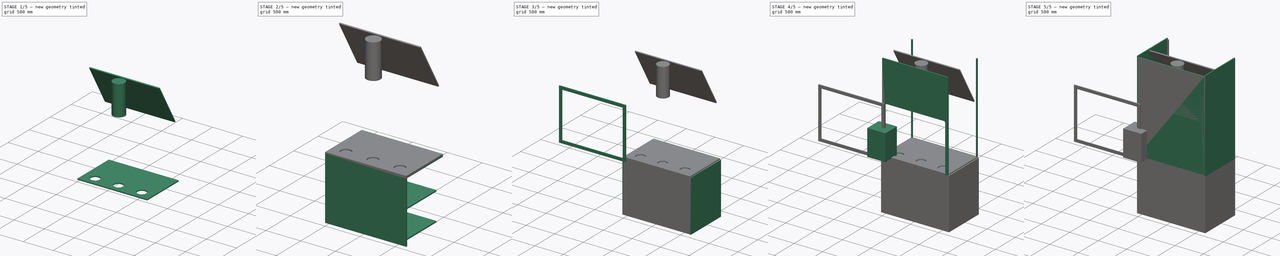
[diagram: build sequence overview — one tinted view per stage of 5, left to right]
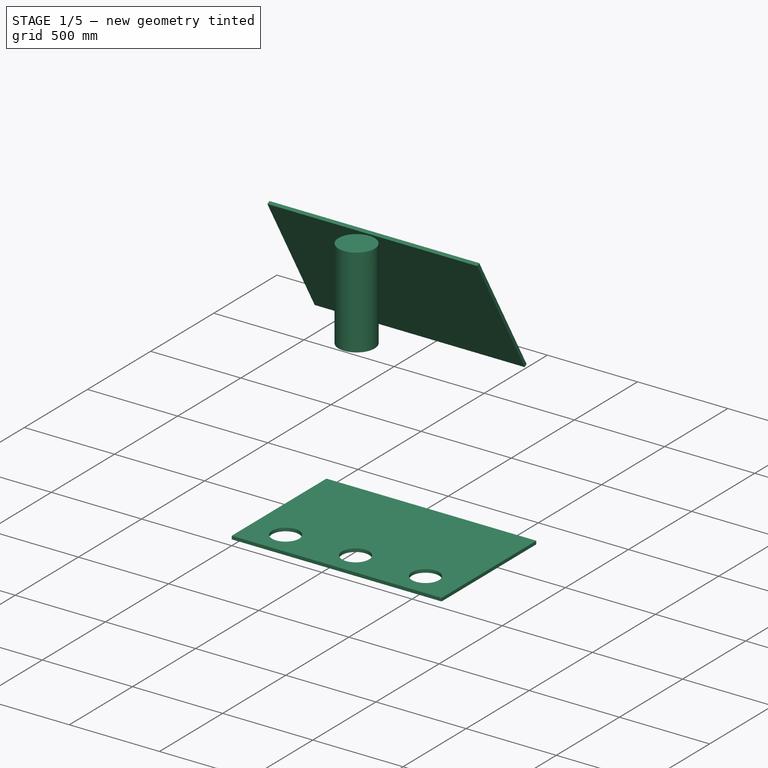
[diagram: stage 1 of 5 — iso view after this stage's code; geometry added in this stage tinted green]
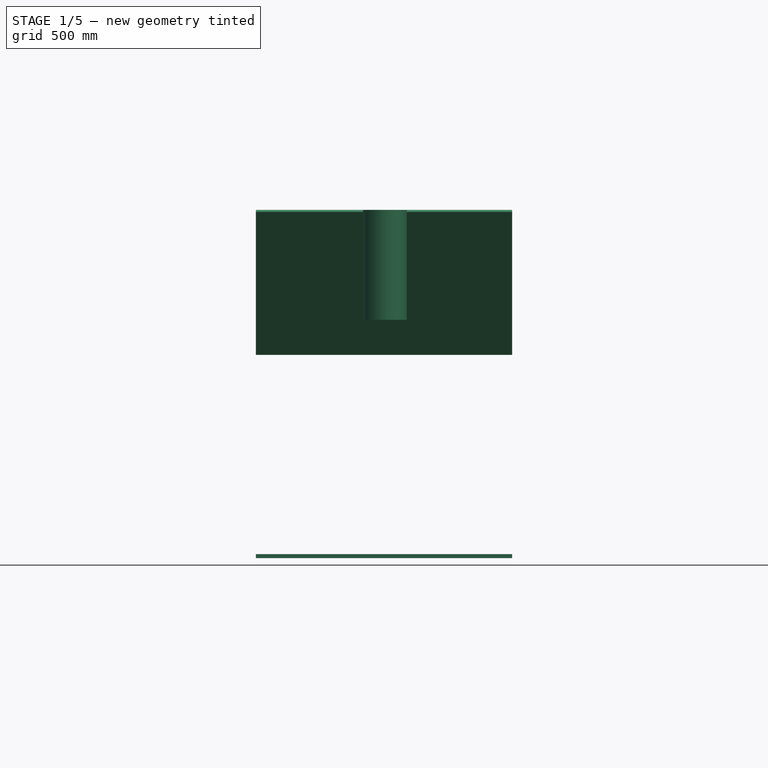
[diagram: stage 1 of 5 — front view after this stage's code; geometry added in this stage tinted green]
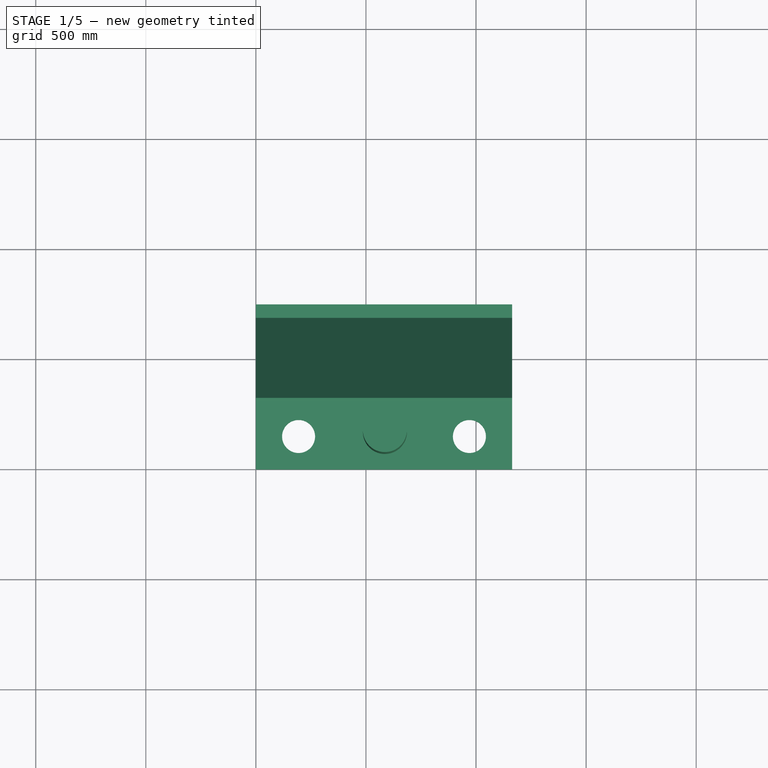
[diagram: stage 1 of 5 — top view after this stage's code; geometry added in this stage tinted green]
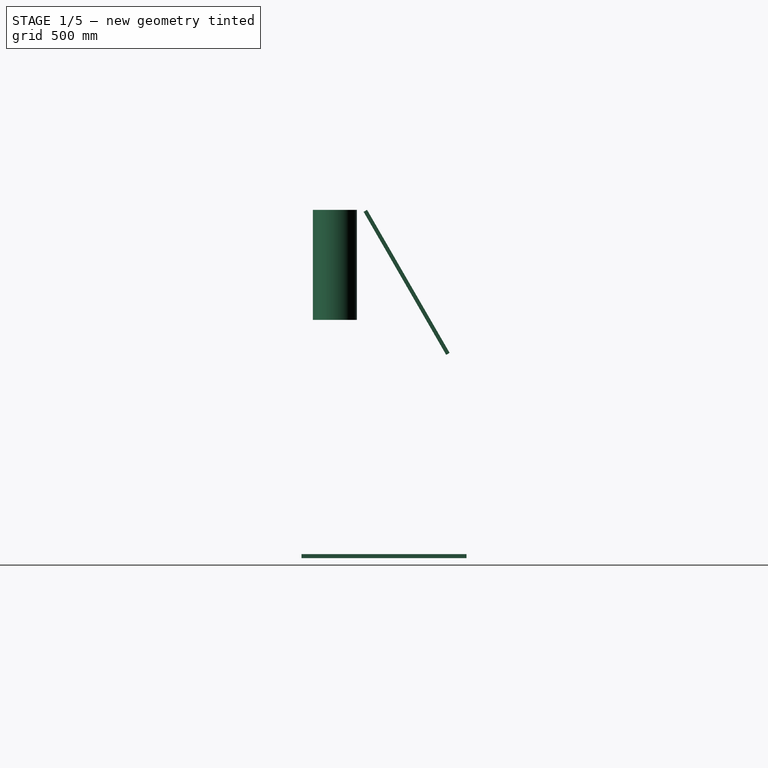
[diagram: stage 1 of 5 — right view after this stage's code; geometry added in this stage tinted green]
FCSTD DOCUMENT  (FreeCAD 0.18R4 (GitTag))
Label: fumehood1200
License: All rights reserved
LicenseURL: http://en.wikipedia.org/wiki/All_rights_reserved
objects: Part::Box×13, Sketcher::SketchObject×7, PartDesign::Body×5, PartDesign::Pad×4, App::Part×3, PartDesign::Pocket×2, TechDraw::DrawSVGTemplate×2, TechDraw::DrawPage×2, Spreadsheet::Sheet×1, Part::Cylinder×1
note: 38 computed .brp shape members not serialized (recipe doc carries the construction recipe); baked Part::Feature solids carry a one-line shape summary decoded from their .brp

FEATURE [App::Part] Part002  label="Shelf"
  Group = -> [Box007,Box008,Box009,Box010,Box011,Box012]
  Origin = -> Origin013
  Placement = pos=(0,0,-300) rot=(0,0,1;0rad)
FEATURE [Part::Cylinder] Cylinder
  Angle = 360
  AttacherType = Attacher::AttachEngine3D
  Height = 500
  Placement = pos=(586,152,1082) rot=(0,0,1;0rad)
  Radius = 100
FEATURE [Part::Box] Box013  label="Airway"
  AttacherType = Attacher::AttachEngine3D
  Height = 750
  Length = 1164
  Placement = pos=(0,298,1582) rot=(1,0,0;3.66519rad)
  Width = 18
  expr: Width = dim.dim_thickness
  expr: Length = dim.dim_width - 2 * dim.dim_thickness
FEATURE [Sketcher::SketchObject] Sketch013
  MapMode = 5
  Support = -> [XY_Plane014]
  expr: Constraints[10] = dim.dim_width - 2 * dim.dim_thickness
  expr: Constraints[9] = dim.dim_depth
  sketch-geometry (4):
    g0: LineSegment StartX=0 StartY=0 StartZ=0 EndX=1164 EndY=0 EndZ=0
    g1: LineSegment StartX=1164 StartY=0 StartZ=0 EndX=1164 EndY=750 EndZ=0
    g2: LineSegment StartX=1164 StartY=750 StartZ=0 EndX=0 EndY=750 EndZ=0
    g3: LineSegment StartX=0 StartY=750 StartZ=0 EndX=0 EndY=0 EndZ=0
  constraints (11):
    c: Coincident(g0,g1)
    c: Coincident(g1,g2)
    c: Coincident(g2,g3)
    c: Coincident(g3,g0)
    c: Horizontal(g0)
    c: Horizontal(g2)
    c: Vertical(g1)
    c: Vertical(g3)
    c: Coincident(g0,g-1)
    c: DistanceY(g1,g1) = 750
    c: DistanceX(g2,g2) = 1164
FEATURE [PartDesign::Pad] Pad011
  Length = 18
  Length2 = 100
  Profile = -> Sketch013
  Type = 0
  expr: Length = dim.dim_thickness
FEATURE [Sketcher::SketchObject] Sketch014
  ExternalGeometry = -> [Pad011]
  MapMode = 5
  Placement = pos=(0,0,18) rot=(0,0,1;0rad)
  Support = -> [Pad011]
  sketch-geometry (11):
    g0: LineSegment [constr] StartX=0 StartY=0 StartZ=0 EndX=194 EndY=150 EndZ=0
    g1: LineSegment [constr] StartX=194 StartY=150 StartZ=0 EndX=388 EndY=0 EndZ=0
    g2: LineSegment [constr] StartX=388 StartY=0 StartZ=0 EndX=582 EndY=150 EndZ=0
    g3: LineSegment [constr] StartX=582 StartY=150 StartZ=0 EndX=776 EndY=0 EndZ=0
    g4: LineSegment [constr] StartX=776 StartY=0 StartZ=0 EndX=970 EndY=150 EndZ=0
    g5: LineSegment [constr] StartX=970 StartY=150 StartZ=0 EndX=1164 EndY=0 EndZ=0
    g6: LineSegment [constr] StartX=194 StartY=150 StartZ=0 EndX=582 EndY=150 EndZ=0
    g7: LineSegment [constr] StartX=582 StartY=150 StartZ=0 EndX=970 EndY=150 EndZ=0
    g8: Circle CenterX=582 CenterY=150 CenterZ=0 NormalX=0 NormalY=0 NormalZ=1 AngleXU=0 Radius=75
    g9: Circle CenterX=970 CenterY=150 CenterZ=0 NormalX=0 NormalY=0 NormalZ=1 AngleXU=0 Radius=75
    g10: Circle CenterX=194 CenterY=150 CenterZ=0 NormalX=0 NormalY=0 NormalZ=1 AngleXU=0 Radius=75
  constraints (27):
    c: Coincident(g-1,g0)
    c: Coincident(g0,g1)
    c: PointOnObject(g1,g-3)
    c: Coincident(g1,g2)
    c: Coincident(g2,g3)
    c: PointOnObject(g3,g-3)
    c: Coincident(g3,g4)
    c: Coincident(g4,g5)
    c: Coincident(g5,g-3)
    c: Coincident(g0,g6)
    c: Coincident(g6,g2)
    c: Horizontal(g6)
    c: Coincident(g6,g7)
    c: Coincident(g7,g4)
    c: Horizontal(g7)
    c: Equal(g1,g0)
    c: Equal(g0,g2)
    c: Equal(g2,g3)
    c: Equal(g3,g4)
    c: Equal(g4,g5)
    c: Coincident(g8,g2)
    c: Coincident(g9,g4)
    c: Coincident(g10,g0)
    c: Diameter(g10) = 150
    c: Equal(g10,g8)
    c: Equal(g10,g9)
    c: DistanceY(g-1,g10) = 150
FEATURE [PartDesign::Pocket] Pocket001
  BaseFeature = -> Pad011
  Length = 5
  Length2 = 100
  Profile = -> Sketch014
  Type = 1
FEATURE [PartDesign::Body] Body010  label="Top001"
  Group = -> [Sketch013,Pad011,Sketch014,Pocket001]
  Origin = -> Origin014
  Placement = pos=(0,0,1582) rot=(0,0,1;0rad)
  Tip = -> Pocket001
  expr: Placement.Base.z = dim.dim_height - dim.dim_thickness
FEATURE [TechDraw::DrawSVGTemplate] Template
  EditableTexts = Designed_by_Name=Designed by Name; Drawing_number=Drawing number; FC-Date=Date; FC-SC=Scale; FC-SH=Sheet; FC-Title=Title; Subtitle=Subtitle; Weight=Weight
  Height = 210
  Orientation = 1
  Width = 297
FEATURE [TechDraw::DrawPage] Page  label="Box"
  KeepUpdated = true
  ProjectionType = 0
  Template = -> Template
FEATURE [TechDraw::DrawSVGTemplate] Template001
  EditableTexts = Designed_by_Name=Designed by Name; Drawing_number=Drawing number; FC-Date=Date; FC-SC=Scale; FC-SH=Sheet; FC-Title=Title; Subtitle=Subtitle; Weight=Weight
  Height = 210
  Orientation = 1
  Width = 297
FEATURE [TechDraw::DrawPage] Page001  label="Shelf001"
  KeepUpdated = true
  ProjectionType = 0
  Template = -> Template001
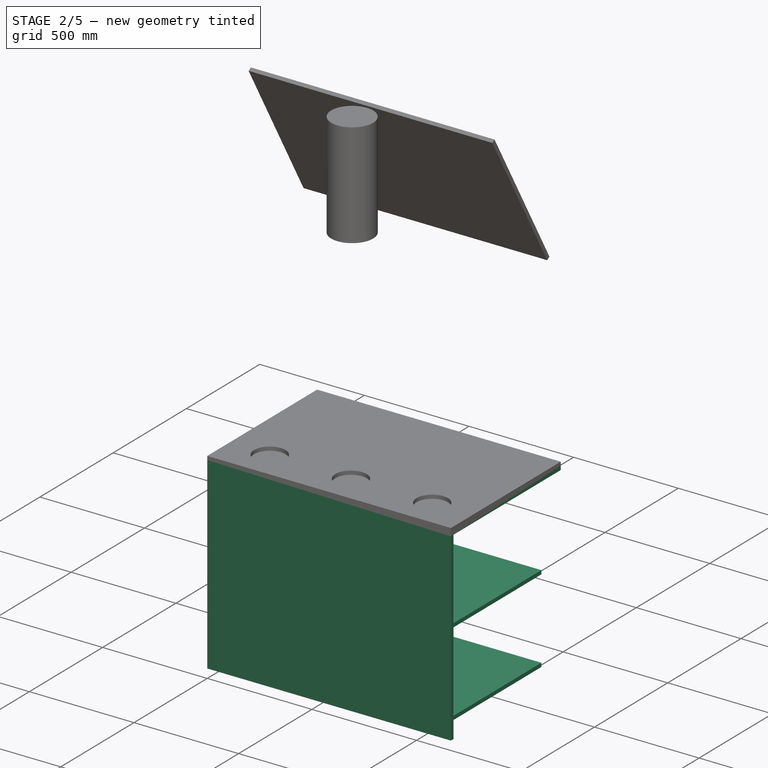
[diagram: stage 2 of 5 — iso view after this stage's code; geometry added in this stage tinted green]
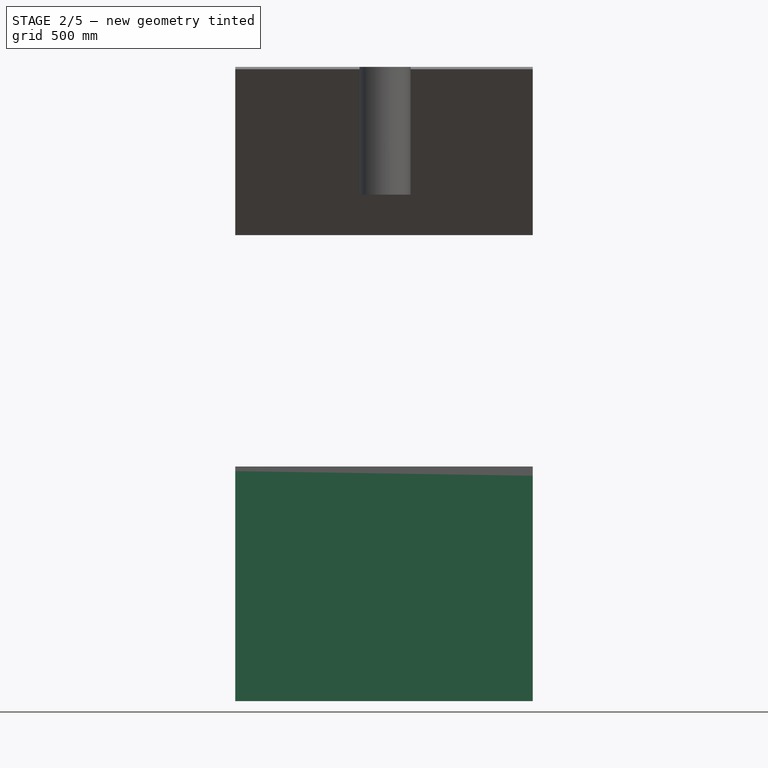
[diagram: stage 2 of 5 — front view after this stage's code; geometry added in this stage tinted green]
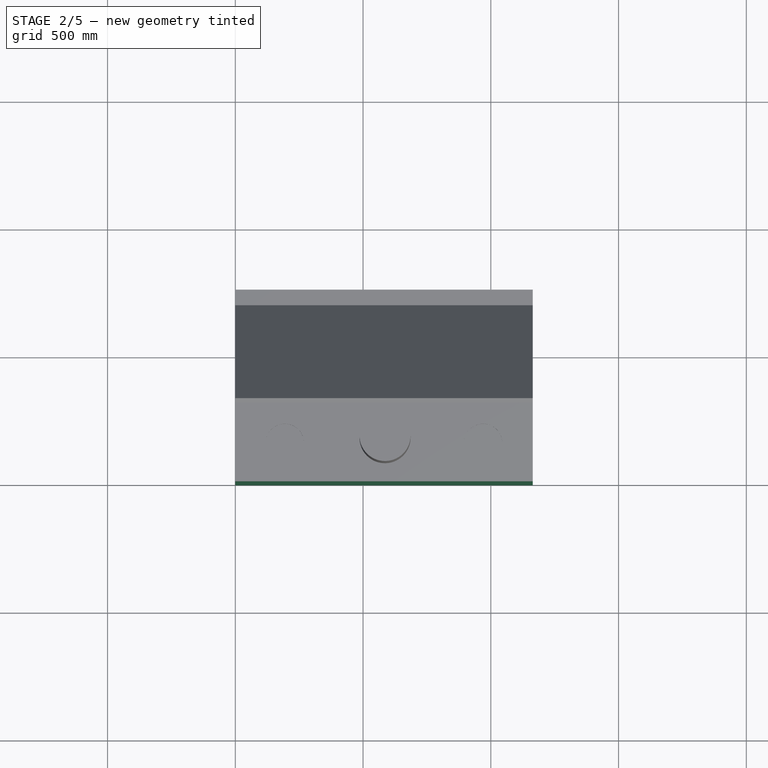
[diagram: stage 2 of 5 — top view after this stage's code; geometry added in this stage tinted green]
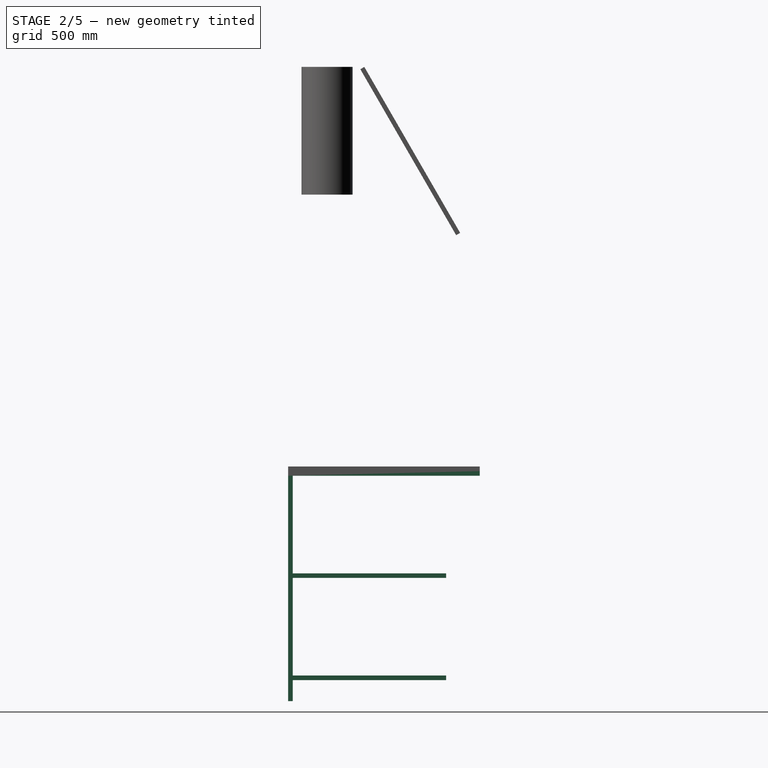
[diagram: stage 2 of 5 — right view after this stage's code; geometry added in this stage tinted green]
FEATURE [Part::Box] Box009  label="ShelfTop"
  AttacherType = Attacher::AttachEngine3D
  Height = 750
  Length = 1164
  Placement = pos=(0,0,3.89e-13) rot=(-1,0,0;1.5708rad)
  Width = 18
  expr: Height = dim.dim_depth
  expr: Width = dim.dim_thickness
  expr: Length = dim.dim_width - 2 * dim.dim_thickness
FEATURE [Part::Box] Box010  label="ShelfBack"
  AttacherType = Attacher::AttachEngine3D
  Height = 882
  Length = 1164
  Placement = pos=(0,0,-900) rot=(0,0,1;0rad)
  Width = 18
  expr: Width = dim.dim_thickness
  expr: Height = dim.dim_elevation - dim.dim_thickness
  expr: Length = dim.dim_width - 2 * dim.dim_thickness
FEATURE [Part::Box] Box011  label="ShelfMid1"
  AttacherType = Attacher::AttachEngine3D
  Height = 18
  Length = 1164
  Placement = pos=(0,18,-418) rot=(0,0,1;0rad)
  Width = 600
  expr: Length = dim.dim_width - 2 * dim.dim_thickness
  expr: Width = dim.dim_depth - 150
  expr: Height = dim.dim_thickness
FEATURE [Part::Box] Box012  label="ShelfMid2"
  AttacherType = Attacher::AttachEngine3D
  Height = 18
  Length = 1164
  Placement = pos=(0,18,-818) rot=(0,0,1;0rad)
  Width = 600
  expr: Height = dim.dim_thickness
  expr: Width = dim.dim_depth - 150
  expr: Length = dim.dim_width - 2 * dim.dim_thickness
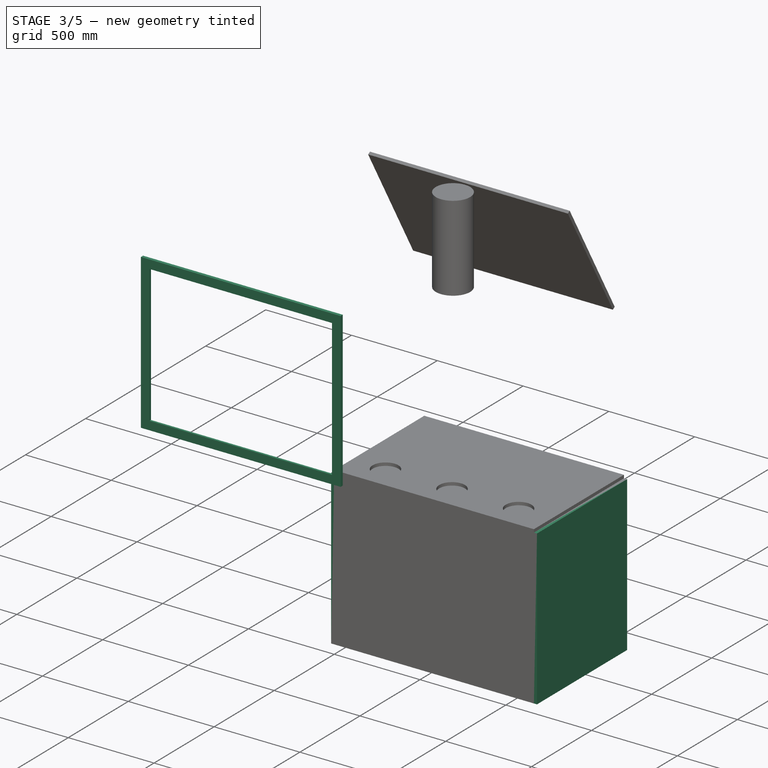
[diagram: stage 3 of 5 — iso view after this stage's code; geometry added in this stage tinted green]
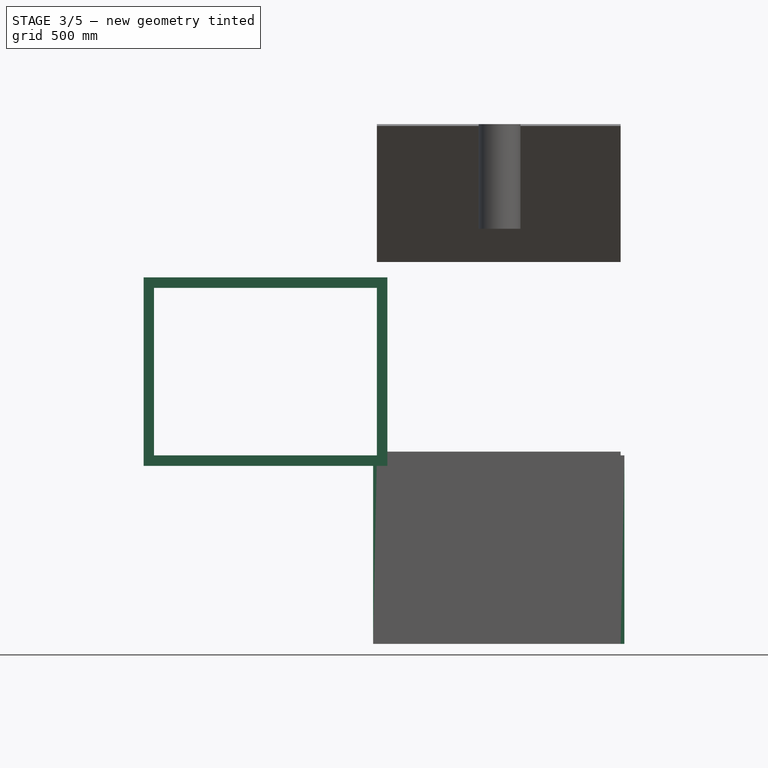
[diagram: stage 3 of 5 — front view after this stage's code; geometry added in this stage tinted green]
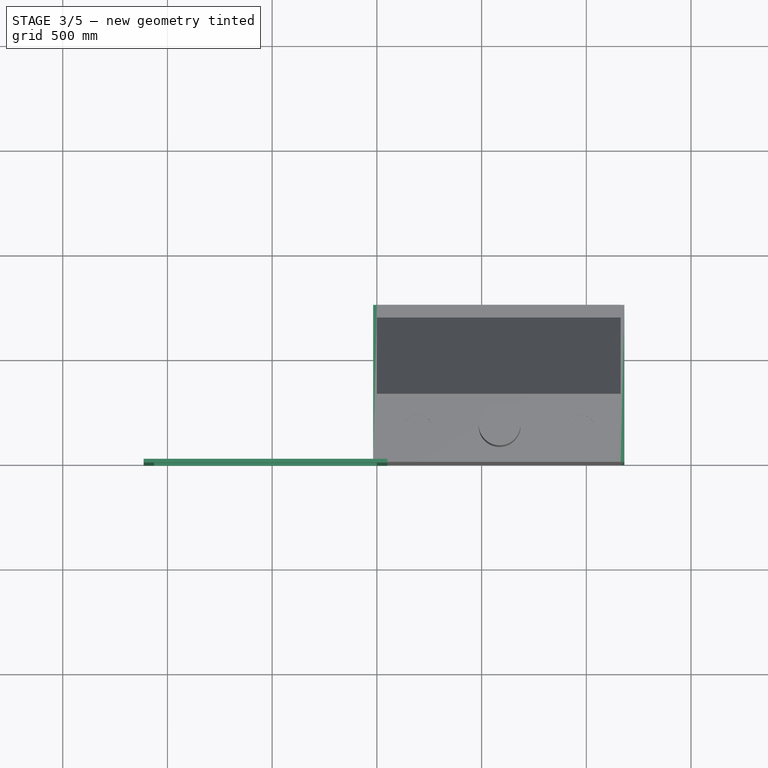
[diagram: stage 3 of 5 — top view after this stage's code; geometry added in this stage tinted green]
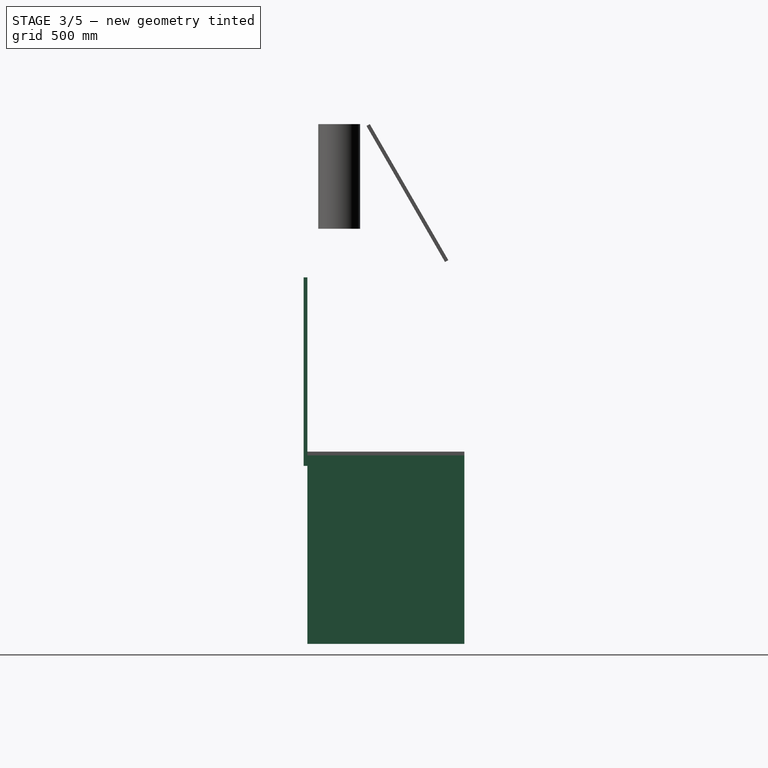
[diagram: stage 3 of 5 — right view after this stage's code; geometry added in this stage tinted green]
FEATURE [PartDesign::Body] Body  label="Front"
  Group = -> [Sketch,Pad]
  Origin = -> Origin
  Placement = pos=(0,662,18) rot=(0,0,1;0rad)
  Tip = -> Pad
  expr: Placement.Base.y = dim.dim_depth - 1 * dim.dim_thickness - 20 - 50
FEATURE [Sketcher::SketchObject] Sketch001
  MapMode = 5
  Placement = pos=(0,0,0) rot=(1,0,0;1.5708rad)
  Support = -> [XZ_Plane001]
  expr: Constraints[34] = dim.dim_windowedge
  expr: Constraints[18] = dim.dim_windowheight
  expr: Constraints[17] = dim.dim_windowwidth
  sketch-geometry (12):
    g0: LineSegment StartX=0 StartY=0 StartZ=0 EndX=-1064 EndY=0 EndZ=0
    g1: LineSegment StartX=-1064 StartY=0 StartZ=0 EndX=-1064 EndY=800 EndZ=0
    g2: LineSegment StartX=-1064 StartY=800 StartZ=0 EndX=0 EndY=800 EndZ=0
    g3: LineSegment StartX=0 StartY=800 StartZ=0 EndX=0 EndY=0 EndZ=0
    g4: LineSegment StartX=50 StartY=850 StartZ=0 EndX=-1114 EndY=850 EndZ=0
    g5: LineSegment StartX=-1114 StartY=850 StartZ=0 EndX=-1114 EndY=-50 EndZ=0
    g6: LineSegment StartX=-1114 StartY=-50 StartZ=0 EndX=50 EndY=-50 EndZ=0
    g7: LineSegment StartX=50 StartY=-50 StartZ=0 EndX=50 EndY=850 EndZ=0
    g8: LineSegment [constr] StartX=-1064 StartY=800 StartZ=0 EndX=-1114 EndY=800 EndZ=0
    g9: LineSegment [constr] StartX=-1064 StartY=800 StartZ=0 EndX=-1064 EndY=850 EndZ=0
    g10: LineSegment [constr] StartX=0 StartY=0 StartZ=0 EndX=50 EndY=0 EndZ=0
    g11: LineSegment [constr] StartX=0 StartY=0 StartZ=0 EndX=0 EndY=-50 EndZ=0
  constraints (35):
    c: Coincident(g0,g1)
    c: Coincident(g1,g2)
    c: Coincident(g2,g3)
    c: Coincident(g3,g0)
    c: Horizontal(g0)
    c: Horizontal(g2)
    c: Vertical(g1)
    c: Vertical(g3)
    c: Coincident(g0,g-1)
    c: Coincident(g4,g5)
    c: Coincident(g5,g6)
    c: Coincident(g6,g7)
    c: Coincident(g7,g4)
    c: Horizontal(g4)
    c: Horizontal(g6)
    c: Vertical(g5)
    c: Vertical(g7)
    c: DistanceX(g4,g4) = 1164
    c: DistanceY(g5,g5) = 900
    c: Coincident(g8,g1)
    c: PointOnObject(g8,g5)
    c: Horizontal(g8)
    c: Coincident(g9,g1)
    c: PointOnObject(g9,g4)
    c: Vertical(g9)
    c: Coincident(g10,g0)
    c: PointOnObject(g10,g7)
    c: Coincident(g11,g0)
    c: PointOnObject(g11,g6)
    c: Horizontal(g10)
    c: Vertical(g11)
    c: Equal(g10,g11)
    c: Equal(g11,g8)
    c: Equal(g8,g9)
    c: DistanceX(g8,g8) = 50
FEATURE [PartDesign::Pad] Pad001
  Length = 18
  Length2 = 100
  Placement = pos=(0,0,0) rot=(1,0,0;1.5708rad)
  Profile = -> Sketch001
  Type = 0
  expr: Length = dim.dim_thickness
FEATURE [Sketcher::SketchObject] Sketch012
  ExternalGeometry = -> [Pad001]
  MapMode = 5
  Placement = pos=(0,8e-16,0) rot=(-1,0,0;1.5708rad)
  Support = -> [Pad001]
  sketch-geometry (8):
    g0: LineSegment StartX=-1079 StartY=15 StartZ=0 EndX=15 EndY=15 EndZ=0
    g1: LineSegment StartX=15 StartY=15 StartZ=0 EndX=15 EndY=-815 EndZ=0
    g2: LineSegment StartX=15 StartY=-815 StartZ=0 EndX=-1079 EndY=-815 EndZ=0
    g3: LineSegment StartX=-1079 StartY=-815 StartZ=0 EndX=-1079 EndY=15 EndZ=0
    g4: LineSegment [constr] StartX=-1064 StartY=0 StartZ=0 EndX=-1079 EndY=0 EndZ=0
    g5: LineSegment [constr] StartX=-1064 StartY=0 StartZ=0 EndX=-1064 EndY=15 EndZ=0
    g6: LineSegment [constr] StartX=0 StartY=-800 StartZ=0 EndX=15 EndY=-800 EndZ=0
    g7: LineSegment [constr] StartX=0 StartY=-800 StartZ=0 EndX=0 EndY=-815 EndZ=0
  constraints (24):
    c: Coincident(g0,g1)
    c: Coincident(g1,g2)
    c: Coincident(g2,g3)
    c: Coincident(g3,g0)
    c: Horizontal(g0)
    c: Horizontal(g2)
    c: Vertical(g1)
    c: Vertical(g3)
    c: Coincident(g4,g-3)
    c: PointOnObject(g4,g3)
    c: Horizontal(g4)
    c: Coincident(g5,g4)
    c: PointOnObject(g5,g0)
    c: Vertical(g5)
    c: Coincident(g6,g-4)
    c: PointOnObject(g6,g1)
    c: Horizontal(g6)
    c: Coincident(g7,g6)
    c: PointOnObject(g7,g2)
    c: Vertical(g7)
    c: Equal(g6,g7)
    c: Equal(g7,g4)
    c: Equal(g4,g5)
    c: DistanceX(g4,g4) = 15
FEATURE [PartDesign::Pocket] Pocket
  BaseFeature = -> Pad001
  Length = 6
  Length2 = 100
  Placement = pos=(0,0,0) rot=(1,0,0;1.5708rad)
  Profile = -> Sketch012
  Type = 0
FEATURE [PartDesign::Body] Body001  label="Window"
  Group = -> [Sketch001,Pad001,Sketch012,Pocket]
  Origin = -> Origin001
  Placement = pos=(1114,700,68) rot=(0,0,1;0rad)
  Tip = -> Pocket
  expr: Placement.Base.x = dim.dim_width - 2 * dim.dim_thickness - 50
FEATURE [App::Part] Part001  label="Window001"
  Group = -> [Body001]
  Origin = -> Origin012
  Placement = pos=(0,0,350) rot=(0,0,1;0rad)
FEATURE [Part::Box] Box007  label="ShelfSide1"
  AttacherType = Attacher::AttachEngine3D
  Height = 900
  Length = 18
  Placement = pos=(-18,0,-900) rot=(0,0,1;0rad)
  Width = 750
  expr: Length = dim.dim_thickness
  expr: Width = dim.dim_depth
  expr: Height = dim.dim_elevation
FEATURE [Part::Box] Box008  label="ShelfSide2"
  AttacherType = Attacher::AttachEngine3D
  Height = 900
  Length = 18
  Placement = pos=(1164,0,-900) rot=(0,0,1;0rad)
  Width = 750
  expr: Height = dim.dim_elevation
  expr: Width = dim.dim_depth
  expr: Length = dim.dim_thickness
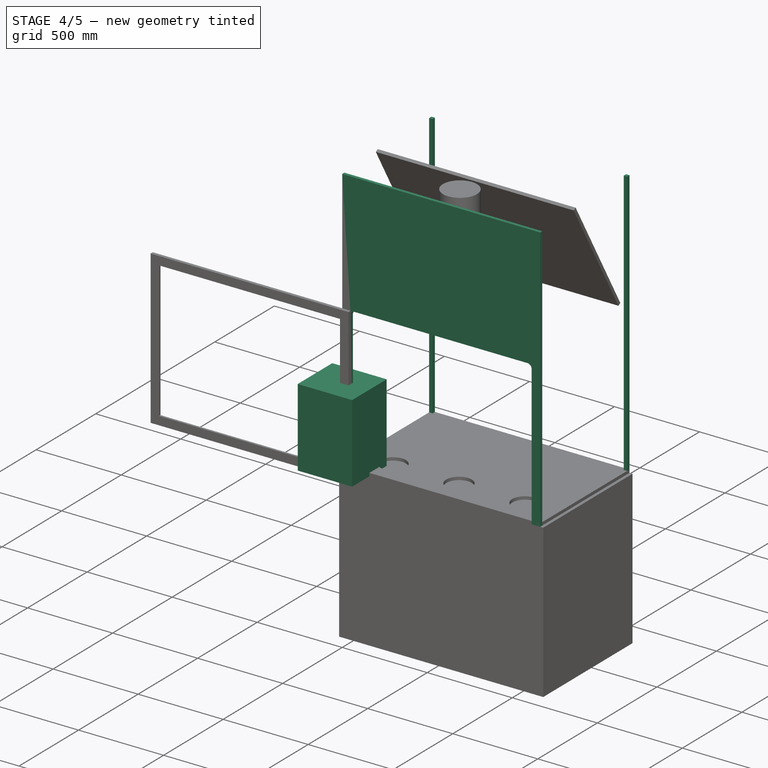
[diagram: stage 4 of 5 — iso view after this stage's code; geometry added in this stage tinted green]
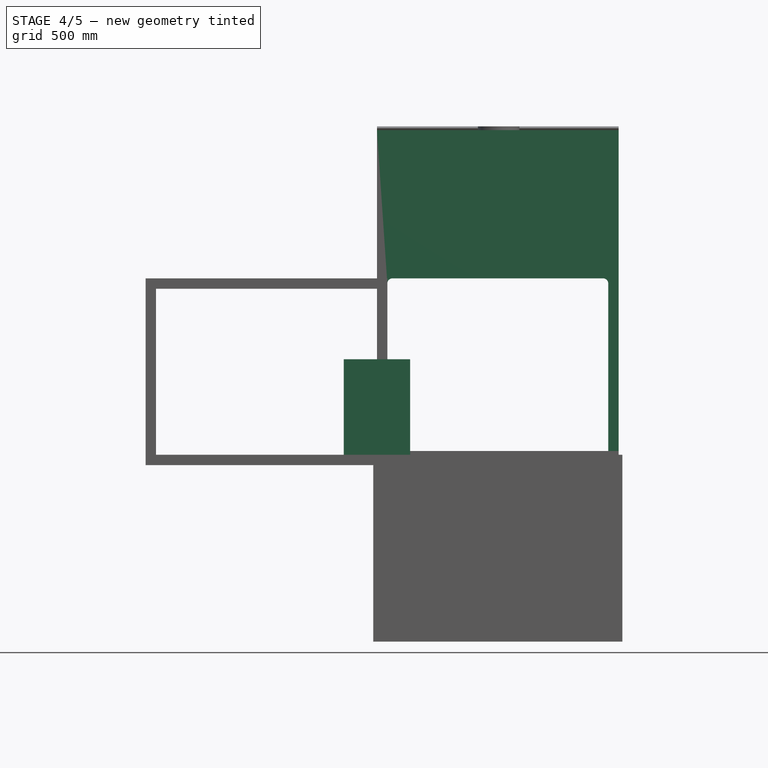
[diagram: stage 4 of 5 — front view after this stage's code; geometry added in this stage tinted green]
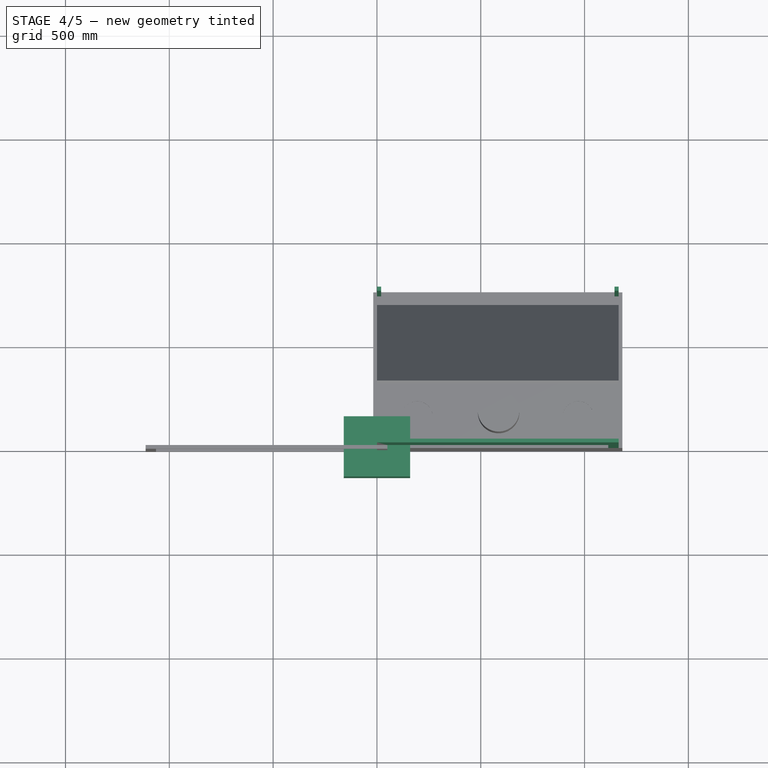
[diagram: stage 4 of 5 — top view after this stage's code; geometry added in this stage tinted green]
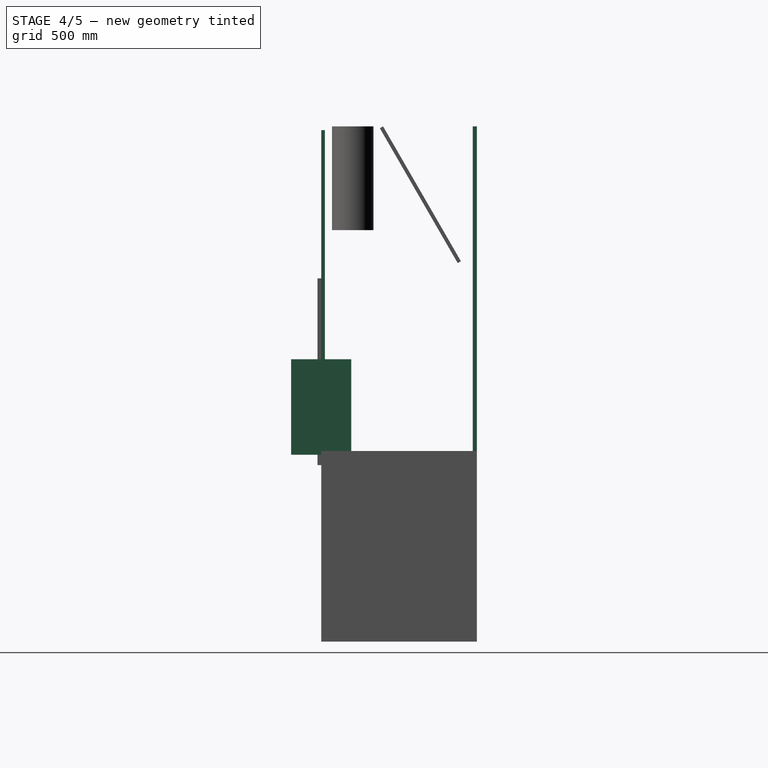
[diagram: stage 4 of 5 — right view after this stage's code; geometry added in this stage tinted green]
FEATURE [Sketcher::SketchObject] Sketch
  MapMode = 5
  Placement = pos=(0,0,0) rot=(1,0,0;1.5708rad)
  Support = -> [XZ_Plane]
  expr: Constraints[26] = dim.dim_frontedge
  expr: Constraints[16] = dim.dim_frontopening
  expr: Constraints[14] = dim.dim_frontradius
  expr: Constraints[6] = dim.dim_height - 2 * dim.dim_thickness
  expr: Constraints[5] = dim.dim_width - 2 * dim.dim_thickness
  sketch-geometry (10):
    g0: LineSegment StartX=1164 StartY=0 StartZ=0 EndX=1164 EndY=1564 EndZ=0
    g1: LineSegment StartX=1164 StartY=1564 StartZ=0 EndX=0 EndY=1564 EndZ=0
    g2: LineSegment StartX=0 StartY=1564 StartZ=0 EndX=0 EndY=0 EndZ=0
    g3: LineSegment StartX=75 StartY=850 StartZ=0 EndX=1089 EndY=850 EndZ=0
    g4: LineSegment StartX=1114 StartY=825 StartZ=0 EndX=1114 EndY=0 EndZ=0
    g5: LineSegment StartX=50 StartY=0 StartZ=0 EndX=50 EndY=825 EndZ=0
    g6: ArcOfCircle CenterX=75 CenterY=825 CenterZ=0 NormalX=0 NormalY=0 NormalZ=1 AngleXU=0 Radius=25 StartAngle=1.5708 EndAngle=3.14159
    g7: ArcOfCircle CenterX=1089 CenterY=825 CenterZ=0 NormalX=0 NormalY=0 NormalZ=1 AngleXU=0 Radius=25 StartAngle=-1.8e-15 EndAngle=1.5708
    g8: LineSegment StartX=1114 StartY=0 StartZ=0 EndX=1164 EndY=0 EndZ=0
    g9: LineSegment StartX=0 StartY=0 StartZ=0 EndX=50 EndY=0 EndZ=0
  constraints (27):
    c: Coincident(g0,g1)
    c: Coincident(g1,g2)
    c: Horizontal(g1)
    c: Vertical(g0)
    c: Vertical(g2)
    c: DistanceX(g1,g1) = 1164
    c: DistanceY(g0,g0) = 1564
    c: Horizontal(g3)
    c: Vertical(g4)
    c: Vertical(g5)
    c: Tangent(g5,g6) = 1.5708
    c: Tangent(g3,g6) = 1.5708
    c: Tangent(g3,g7) = 1.5708
    c: Tangent(g4,g7) = 1.5708
    c: Radius(g6) = 25
    c: Equal(g6,g7)
    c: DistanceY(g2,g3) = 850
    c: PointOnObject(g5,g-1)
    c: PointOnObject(g4,g-1)
    c: PointOnObject(g0,g-1)
    c: Coincident(g8,g4)
    c: Coincident(g8,g0)
    c: Coincident(g2,g-1)
    c: Coincident(g9,g2)
    c: Coincident(g9,g5)
    c: Equal(g9,g8)
    c: DistanceX(g9,g9) = 50
FEATURE [PartDesign::Pad] Pad
  Length = 18
  Length2 = 100
  Placement = pos=(0,0,0) rot=(1,0,0;1.5708rad)
  Profile = -> Sketch
  Reversed = true
  Type = 0
  expr: Length = dim.dim_thickness
FEATURE [Sketcher::SketchObject] Sketch010
  MapMode = 5
  Support = -> [XY_Plane010]
  sketch-geometry (7):
    g0: LineSegment StartX=-160 StartY=145 StartZ=0 EndX=160 EndY=145 EndZ=0
    g1: LineSegment StartX=160 StartY=145 StartZ=0 EndX=160 EndY=-145 EndZ=0
    g2: LineSegment StartX=160 StartY=-145 StartZ=0 EndX=-160 EndY=-145 EndZ=0
    g3: LineSegment StartX=-160 StartY=-145 StartZ=0 EndX=-160 EndY=145 EndZ=0
    g4: LineSegment [constr] StartX=-160 StartY=145 StartZ=0 EndX=0 EndY=0 EndZ=0
    g5: LineSegment [constr] StartX=0 StartY=0 StartZ=0 EndX=160 EndY=145 EndZ=0
    g6: LineSegment [constr] StartX=160 StartY=-145 StartZ=0 EndX=0 EndY=0 EndZ=0
  constraints (18):
    c: Coincident(g0,g1)
    c: Coincident(g1,g2)
    c: Coincident(g2,g3)
    c: Coincident(g3,g0)
    c: Horizontal(g0)
    c: Horizontal(g2)
    c: Vertical(g1)
    c: Vertical(g3)
    c: DistanceY(g3,g3) = 290
    c: DistanceX(g0,g0) = 320
    c: Coincident(g0,g4)
    c: Coincident(g4,g-1)
    c: Coincident(g4,g5)
    c: Coincident(g5,g0)
    c: Coincident(g1,g6)
    c: Coincident(g6,g-1)
    c: Equal(g6,g5)
    c: Equal(g5,g4)
FEATURE [PartDesign::Pad] Pad010
  Length = 460
  Length2 = 100
  Profile = -> Sketch010
  Type = 0
FEATURE [PartDesign::Body] Body008  label="Printer"
  Group = -> [Sketch010,Pad010]
  Origin = -> Origin010
  Placement = pos=(0,-450,20) rot=(0,0,1;0rad)
  Tip = -> Pad010
FEATURE [Sketcher::SketchObject] Sketch011
  MapMode = 5
  Placement = pos=(0,0,0) rot=(0.57735,0.57735,0.57735;2.0944rad)
  Support = -> [YZ_Plane011]
  sketch-geometry (17):
    g0: LineSegment StartX=337.533 StartY=73.563 StartZ=0 EndX=380.615 EndY=-384.066 EndZ=0
    g1: LineSegment StartX=380.615 StartY=-384.066 StartZ=0 EndX=395.57 EndY=-900 EndZ=0
    g2: LineSegment StartX=395.57 StartY=-900 StartZ=0 EndX=136.956 EndY=-900 EndZ=0
    g3: LineSegment StartX=337.533 StartY=73.563 StartZ=0 EndX=268.981 EndY=671.761 EndZ=0
    g4: LineSegment StartX=268.981 StartY=671.761 StartZ=0 EndX=434.918 EndY=671.761 EndZ=0
    g5: LineSegment StartX=434.918 StartY=671.761 StartZ=0 EndX=337.533 EndY=73.563 EndZ=0
    g6: Circle CenterX=341.02 CenterY=900 CenterZ=0 NormalX=0 NormalY=0 NormalZ=1 AngleXU=0 Radius=148.256
    g7: LineSegment StartX=268.981 StartY=671.761 StartZ=0 EndX=257.081 EndY=260 EndZ=0
    g8: LineSegment StartX=257.081 StartY=260 StartZ=0 EndX=434.918 EndY=671.761 EndZ=0
    g9: LineSegment StartX=257.081 StartY=260 StartZ=0 EndX=-129.183 EndY=320.639 EndZ=0
    g10: LineSegment StartX=-129.183 StartY=320.639 StartZ=0 EndX=-129.183 EndY=239.552 EndZ=0
    g11: LineSegment StartX=-129.183 StartY=239.552 StartZ=0 EndX=257.081 EndY=260 EndZ=0
    g12: LineSegment StartX=337.533 StartY=73.563 StartZ=0 EndX=292.125 EndY=-384.066 EndZ=0
    g13: LineSegment StartX=292.125 StartY=-384.066 StartZ=0 EndX=395.57 EndY=-900 EndZ=0
    g14: LineSegment StartX=292.125 StartY=-384.066 StartZ=0 EndX=380.615 EndY=-384.066 EndZ=0
    g15: LineSegment StartX=-129.183 StartY=320.639 StartZ=0 EndX=-200.089 EndY=304.859 EndZ=0
    g16: LineSegment StartX=-129.183 StartY=239.552 StartZ=0 EndX=-200.089 EndY=304.859 EndZ=0
  constraints (28):
    c: Coincident(g1,g0)
    c: Coincident(g2,g1)
    c: Horizontal(g2)
    c: DistanceY(g2,g-1) = 900
    c: Coincident(g3,g0)
    c: Coincident(g4,g3)
    c: Horizontal(g4)
    c: Coincident(g5,g4)
    c: Coincident(g5,g0)
    c: DistanceY(g2,g6) = 1800
    c: Coincident(g7,g3)
    c: Coincident(g8,g7)
    c: Coincident(g8,g4)
    c: Coincident(g7,g9)
    c: Coincident(g9,g10)
    c: Vertical(g10)
    c: Coincident(g10,g11)
    c: Coincident(g11,g9)
    c: Coincident(g0,g12)
    c: Coincident(g12,g13)
    c: Coincident(g13,g1)
    c: Coincident(g14,g12)
    c: Coincident(g14,g0)
    c: Horizontal(g14)
    c: DistanceY(g1,g7) = 1160
    c: Coincident(g15,g9)
    c: Coincident(g16,g10)
    c: Coincident(g16,g15)
FEATURE [PartDesign::Body] Body009  label="human"
  Group = -> [Sketch011]
  Origin = -> Origin011
  Placement = pos=(0,-140,0) rot=(0,0,1;0rad)
FEATURE [App::Part] Part  label="Human"
  Group = -> [Body008,Body009]
  Origin = -> Origin002
  Placement = pos=(400,800,0) rot=(0,0,1;0rad)
FEATURE [Part::Box] Box005  label="Rail1"
  AttacherType = Attacher::AttachEngine3D
  Height = 1564
  Length = 20
  Placement = pos=(1144,730,18) rot=(0,0,1;0rad)
  Width = 20
  expr: Height = dim.dim_height - dim.dim_thickness * 2
FEATURE [Part::Box] Box006  label="Rail2"
  AttacherType = Attacher::AttachEngine3D
  Height = 1564
  Length = 20
  Placement = pos=(0,730,18) rot=(0,0,1;0rad)
  Width = 20
  expr: Height = dim.dim_height - dim.dim_thickness * 2
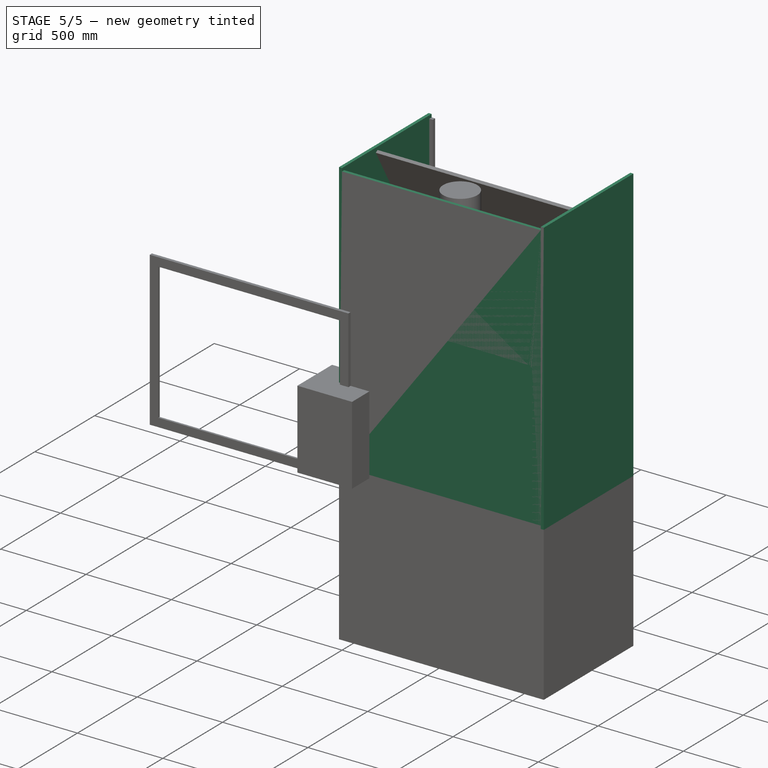
[diagram: stage 5 of 5 — iso view after this stage's code; geometry added in this stage tinted green]
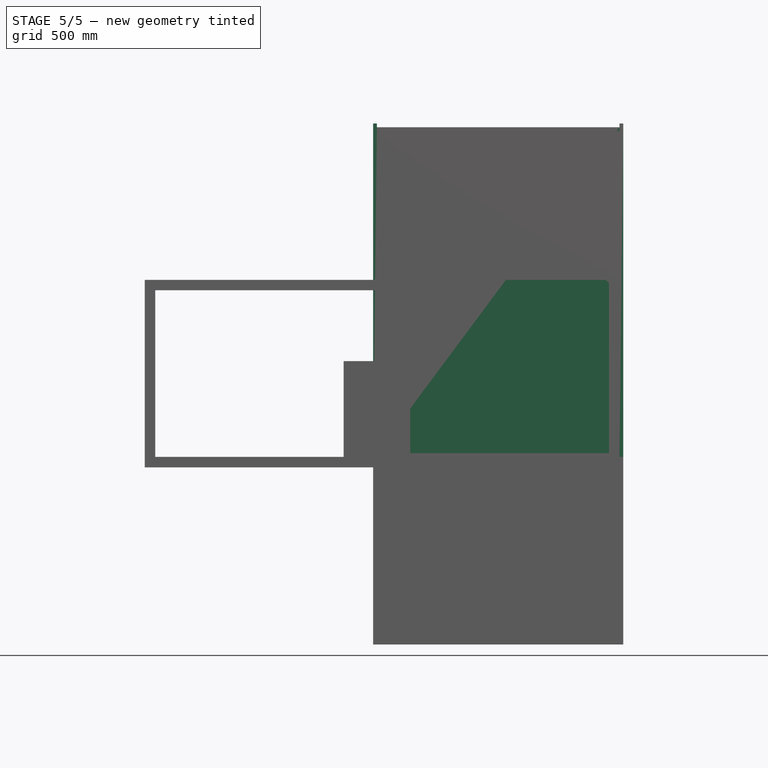
[diagram: stage 5 of 5 — front view after this stage's code; geometry added in this stage tinted green]
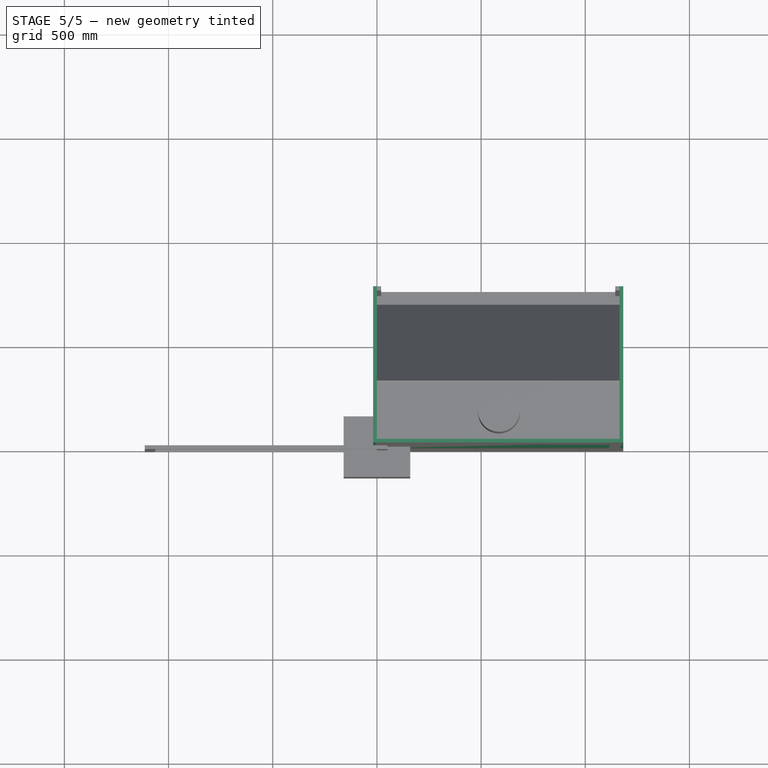
[diagram: stage 5 of 5 — top view after this stage's code; geometry added in this stage tinted green]
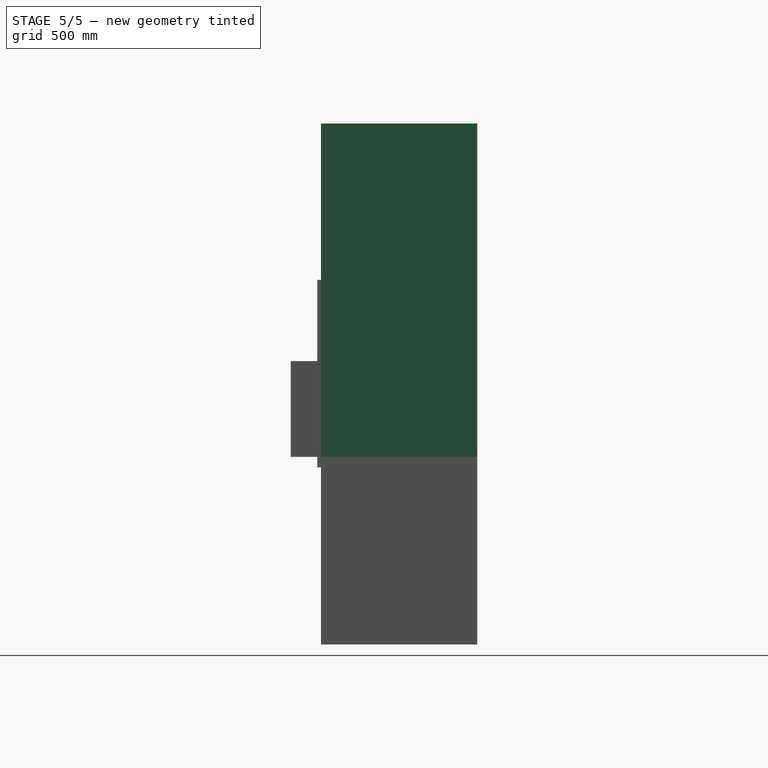
[diagram: stage 5 of 5 — right view after this stage's code; geometry added in this stage tinted green]
FEATURE [Spreadsheet::Sheet] Spreadsheet  label="dim"
  cells = B2=Width; C2(dim_width)=1200; E2=FrontEdge; F2(dim_frontedge)=50; B3=Height; C3(dim_height)=1600; E3=FrontRadius; F3(dim_frontradius)=25; B4=Depth; C4(dim_depth)=750; E4=FrontOpening; F4(dim_frontopening)=850; B5=Thickness; C5(dim_thickness)=18; B6=Elevation; C6(dim_elevation)=900; B8=WindowWidth; C8(dim_windowwidth)==dim_width - dim_thickness * 2; B9=WindowHeight; C9(dim_windowheight)=900; B10=WindowEdge; C10(dim_windowedge)=50
FEATURE [Part::Box] Box  label="BackWall"
  AttacherType = Attacher::AttachEngine3D
  Height = 1564
  Length = 1164
  Placement = pos=(0,0,18) rot=(0,0,1;0rad)
  Width = 18
  expr: Width = dim.dim_thickness
  expr: Height = dim.dim_height - 2 * dim.dim_thickness
  expr: Length = dim.dim_width - 2 * dim.dim_thickness
FEATURE [Part::Box] Box001  label="Side1"
  AttacherType = Attacher::AttachEngine3D
  Height = 1600
  Length = 750
  Placement = pos=(1182,2e-15,0) rot=(0,0,1;1.5708rad)
  Width = 18
  expr: Height = dim.dim_height
  expr: Width = dim.dim_thickness
  expr: Length = dim.dim_depth
FEATURE [Part::Box] Box002  label="Side2"
  AttacherType = Attacher::AttachEngine3D
  Height = 1600
  Length = 750
  Placement = pos=(0,0,0) rot=(0,0,1;1.5708rad)
  Width = 18
  expr: Height = dim.dim_height
  expr: Width = dim.dim_thickness
  expr: Length = dim.dim_depth
FEATURE [Part::Box] Box004  label="Bottom"
  AttacherType = Attacher::AttachEngine3D
  Height = 750
  Length = 1164
  Placement = pos=(0,4e-15,18) rot=(-1,0,0;1.5708rad)
  Width = 18
  expr: Height = dim.dim_depth
  expr: Width = dim.dim_thickness
  expr: Length = dim.dim_width - 2 * dim.dim_thickness
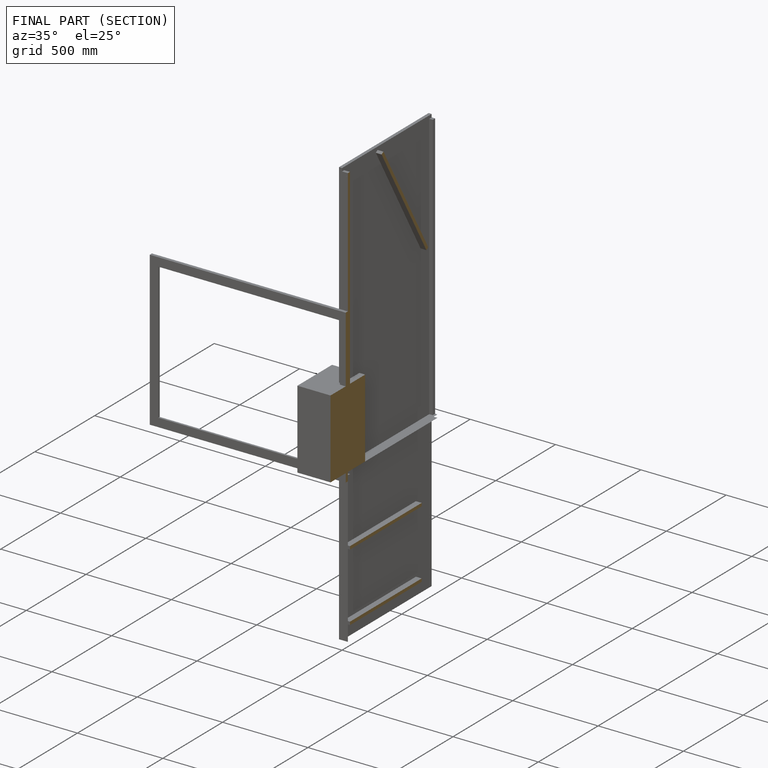
[diagram: finished part — half-section view (interior)]
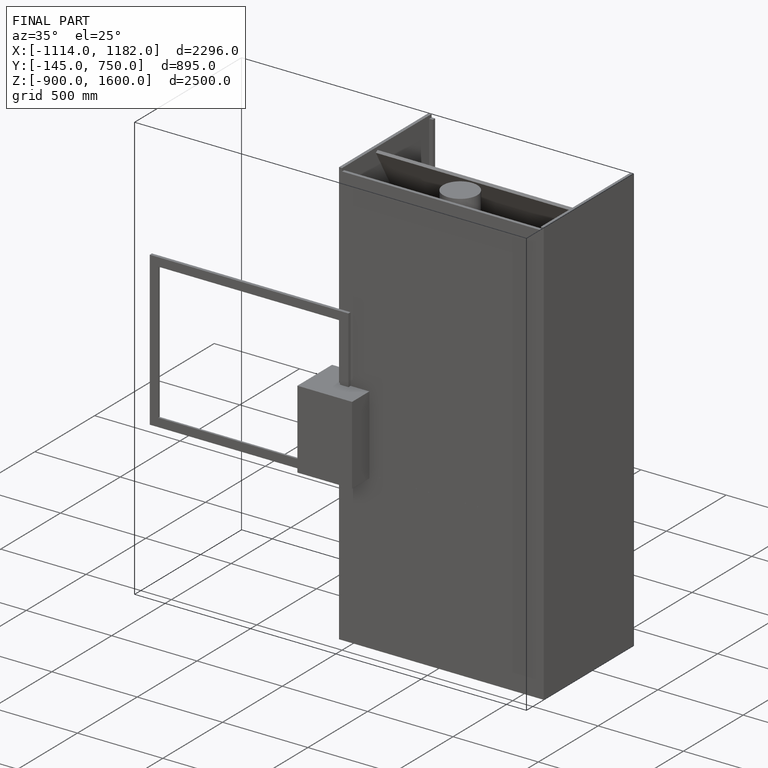
[diagram: finished part — iso view with bounding-box wireframe]
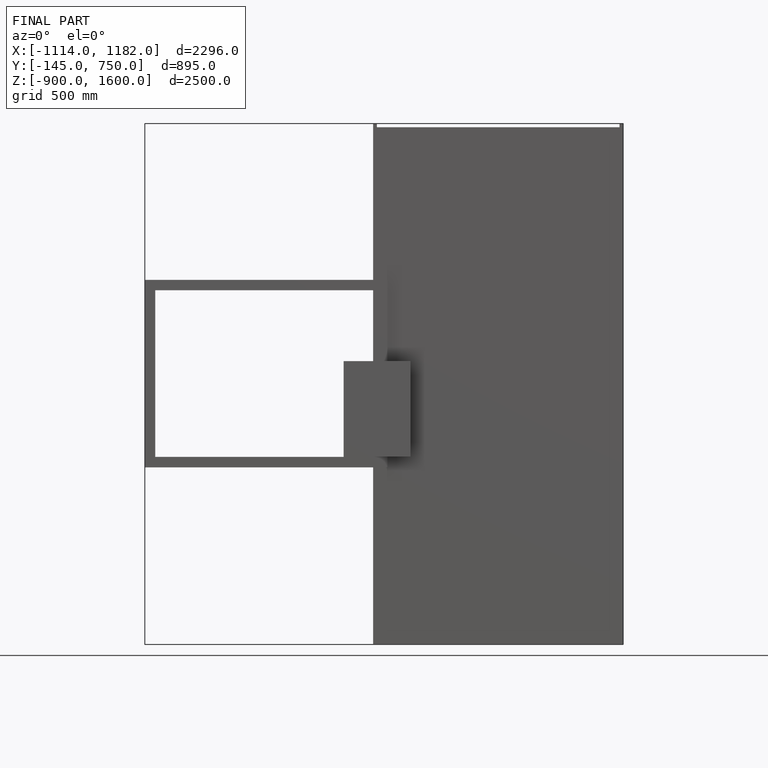
[diagram: finished part — front view with bounding-box wireframe]
